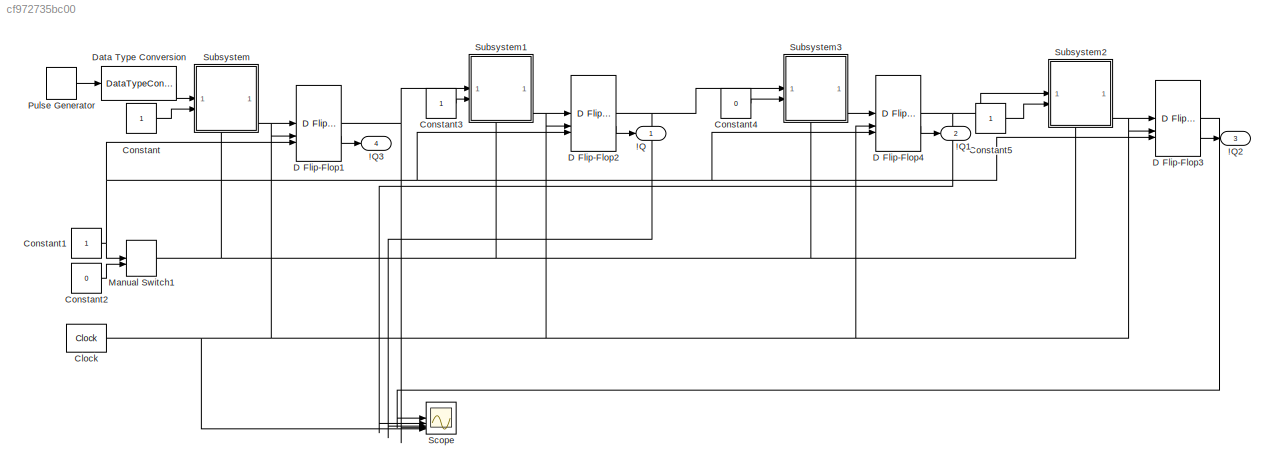
MODEL slx_cf972735bc00
KIND model
CONFIG AbsTol = auto
CONFIG EnableMultiTasking = off
CONFIG FixedStep = auto
CONFIG MaxStep = auto
CONFIG MinStep = auto
CONFIG RelTol = 1e-3
CONFIG SampleTimeConstraint = Unconstrained
CONFIG SolverName = VariableStepAuto
CONFIG StartTime = 0.0
CONFIG StopTime = 10.0
BLOCK [Outport] !Q
BLOCK [Outport] !Q1
  Port = 2
BLOCK [Outport] !Q2
  Port = 3
BLOCK [Outport] !Q3
  Port = 4
BLOCK [Reference] Clock  REF=simulink_extras/Flip Flops/Clock
  SourceBlock = simulink_extras/Flip Flops/Clock
  SourceType = Digital clock
BLOCK [Constant] Constant
BLOCK [Constant] Constant1
  OutDataTypeStr = boolean
BLOCK [Constant] Constant2
  OutDataTypeStr = boolean
  Value = 0
BLOCK [Constant] Constant3
  OutDataTypeStr = boolean
BLOCK [Constant] Constant4
  OutDataTypeStr = boolean
  Value = 0
BLOCK [Constant] Constant5
  OutDataTypeStr = boolean
BLOCK [Reference] D Flip-Flop1  REF=simulink_extras/Flip Flops/D Flip-Flop
  SourceBlock = simulink_extras/Flip Flops/D Flip-Flop
  SourceType = DFlipFlop
BLOCK [Reference] D Flip-Flop2  REF=simulink_extras/Flip Flops/D Flip-Flop
  SourceBlock = simulink_extras/Flip Flops/D Flip-Flop
  SourceType = DFlipFlop
BLOCK [Reference] D Flip-Flop3  REF=simulink_extras/Flip Flops/D Flip-Flop
  SourceBlock = simulink_extras/Flip Flops/D Flip-Flop
  SourceType = DFlipFlop
BLOCK [Reference] D Flip-Flop4  REF=simulink_extras/Flip Flops/D Flip-Flop
  SourceBlock = simulink_extras/Flip Flops/D Flip-Flop
  SourceType = DFlipFlop
BLOCK [DataTypeConversion] Data Type Conversion
  OutDataTypeStr = boolean
  RndMeth = Floor
  SaturateOnIntegerOverflow = off
BLOCK [ManualSwitch] Manual Switch1
  CurrentSetting = 0
BLOCK [DiscretePulseGenerator] Pulse Generator
  PulseType = Time based
  PulseWidth = 50
BLOCK [Scope] Scope
  Floating = off
  NumInputPorts = 5
  ScopeSpecificationString = Simulink.scopes.TimeScopeBlockCfg('CurrentConfiguration', extmgr.ConfigurationSet(extmgr.Configuration('Core','General UI',true),extmgr.Configuration('Core','Source UI',true),extmgr.Configuration('Sources','WiredSimulink',true),extmgr.Configuration('Visuals','Time Domain',true,'SerializedDisplays',{struct('MinYLimReal','-0.125','MaxYLimReal','1.125','YLabelReal','','MinYLimMag','0.00000','MaxYLimM...<+6153ch>
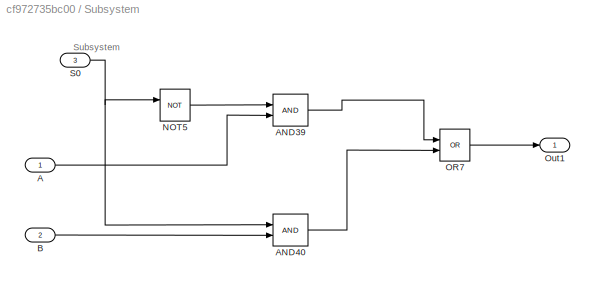
BLOCK [SubSystem] Subsystem
  PortSchema = {"entries":[{"content":{"sides":[{"content":{"connectorIds":["In1","In2"]},"type":"ConnectorPlacement.EquallySpacedRectSide","uuid":"2b5babe2-2f8b-4255-a93c-442313dac02f"},{"content":{"connectorIds":["Out1"],"side":"RIGHT"},"type":"ConnectorPlacement.EquallySpacedRectSide","uuid":"d00cf0b8-9821-435f-8e0a-21d3f86eeeec"},{"content":{"side":"TOP"},"type":"ConnectorPlacement.EquallySpacedRectSide","uu...<+377ch>  <repeated x4 — deduplicated; at blocks: Subsystem, Subsystem1, Subsystem2, Subsystem3>
BLOCK [Inport] Subsystem/A
BLOCK [Logic] Subsystem/AND39
  AllPortsSameDT = off
  IconShape = distinctive
  OutDataTypeStr = boolean
BLOCK [Logic] Subsystem/AND40
  AllPortsSameDT = off
  IconShape = distinctive
  OutDataTypeStr = boolean
BLOCK [Inport] Subsystem/B
  Port = 2
BLOCK [Logic] Subsystem/NOT5
  AllPortsSameDT = off
  IconShape = distinctive
  Operator = NOT
  OutDataTypeStr = boolean
BLOCK [Logic] Subsystem/OR7
  AllPortsSameDT = off
  IconShape = distinctive
  Operator = OR
  OutDataTypeStr = boolean
BLOCK [Outport] Subsystem/Out1
BLOCK [Inport] Subsystem/S0
  Port = 3
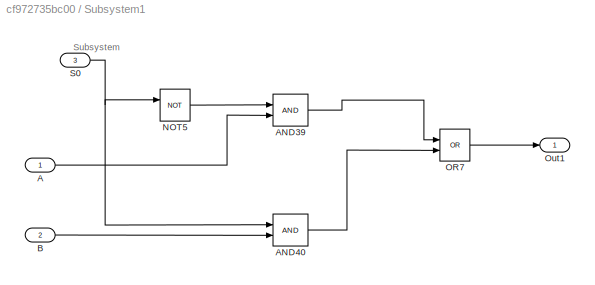
BLOCK [SubSystem] Subsystem1
BLOCK [Inport] Subsystem1/A
BLOCK [Logic] Subsystem1/AND39
  AllPortsSameDT = off
  IconShape = distinctive
  OutDataTypeStr = boolean
BLOCK [Logic] Subsystem1/AND40
  AllPortsSameDT = off
  IconShape = distinctive
  OutDataTypeStr = boolean
BLOCK [Inport] Subsystem1/B
  Port = 2
BLOCK [Logic] Subsystem1/NOT5
  AllPortsSameDT = off
  IconShape = distinctive
  Operator = NOT
  OutDataTypeStr = boolean
BLOCK [Logic] Subsystem1/OR7
  AllPortsSameDT = off
  IconShape = distinctive
  Operator = OR
  OutDataTypeStr = boolean
BLOCK [Outport] Subsystem1/Out1
BLOCK [Inport] Subsystem1/S0
  Port = 3
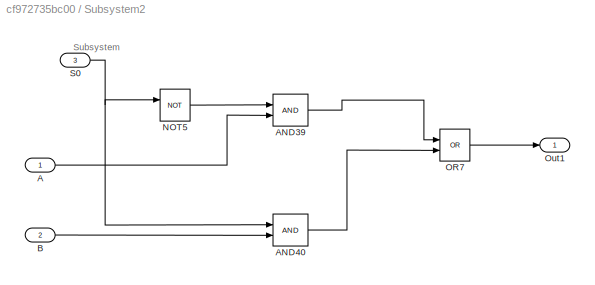
BLOCK [SubSystem] Subsystem2
BLOCK [Inport] Subsystem2/A
BLOCK [Logic] Subsystem2/AND39
  AllPortsSameDT = off
  IconShape = distinctive
  OutDataTypeStr = boolean
BLOCK [Logic] Subsystem2/AND40
  AllPortsSameDT = off
  IconShape = distinctive
  OutDataTypeStr = boolean
BLOCK [Inport] Subsystem2/B
  Port = 2
BLOCK [Logic] Subsystem2/NOT5
  AllPortsSameDT = off
  IconShape = distinctive
  Operator = NOT
  OutDataTypeStr = boolean
BLOCK [Logic] Subsystem2/OR7
  AllPortsSameDT = off
  IconShape = distinctive
  Operator = OR
  OutDataTypeStr = boolean
BLOCK [Outport] Subsystem2/Out1
BLOCK [Inport] Subsystem2/S0
  Port = 3
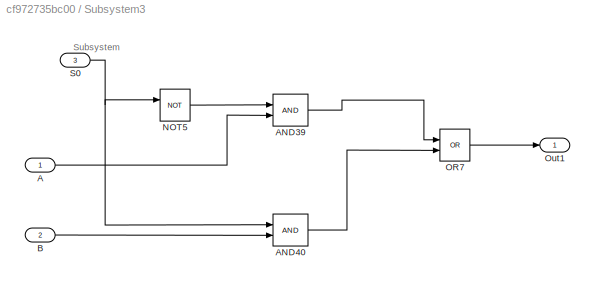
BLOCK [SubSystem] Subsystem3
BLOCK [Inport] Subsystem3/A
BLOCK [Logic] Subsystem3/AND39
  AllPortsSameDT = off
  IconShape = distinctive
  OutDataTypeStr = boolean
BLOCK [Logic] Subsystem3/AND40
  AllPortsSameDT = off
  IconShape = distinctive
  OutDataTypeStr = boolean
BLOCK [Inport] Subsystem3/B
  Port = 2
BLOCK [Logic] Subsystem3/NOT5
  AllPortsSameDT = off
  IconShape = distinctive
  Operator = NOT
  OutDataTypeStr = boolean
BLOCK [Logic] Subsystem3/OR7
  AllPortsSameDT = off
  IconShape = distinctive
  Operator = OR
  OutDataTypeStr = boolean
BLOCK [Outport] Subsystem3/Out1
BLOCK [Inport] Subsystem3/S0
  Port = 3
ANNOTATION Subsystem: Subsystem
ANNOTATION Subsystem1: Subsystem
ANNOTATION Subsystem2: Subsystem
ANNOTATION Subsystem3: Subsystem
NET Clock:1 -> D Flip-Flop1:2, D Flip-Flop2:2, D Flip-Flop3:2, D Flip-Flop4:2, Scope:5
NET Constant1:1 -> D Flip-Flop1:3, D Flip-Flop2:3, D Flip-Flop3:3, D Flip-Flop4:3, Manual Switch1:1
LINE Constant2:1 -> Manual Switch1:2
LINE Constant3:1 -> Subsystem1:2
LINE Constant4:1 -> Subsystem3:2
LINE Constant5:1 -> Subsystem2:2
LINE Constant:1 -> Subsystem:2
NET D Flip-Flop1:1 -> Scope:4, Subsystem1:1
LINE D Flip-Flop1:2 -> !Q3:1
NET D Flip-Flop2:1 -> Scope:3, Subsystem3:1
LINE D Flip-Flop2:2 -> !Q:1
LINE D Flip-Flop3:1 -> Scope:1
LINE D Flip-Flop3:2 -> !Q2:1
NET D Flip-Flop4:1 -> Scope:2, Subsystem2:1
LINE D Flip-Flop4:2 -> !Q1:1
LINE Data Type Conversion:1 -> Subsystem:1
NET Manual Switch1:1 -> Subsystem1:3, Subsystem2:3, Subsystem3:3, Subsystem:3
LINE Pulse Generator:1 -> Data Type Conversion:1
LINE Subsystem/A:1 -> Subsystem/AND39:2
LINE Subsystem/AND39:1 -> Subsystem/OR7:1
LINE Subsystem/AND40:1 -> Subsystem/OR7:2
LINE Subsystem/B:1 -> Subsystem/AND40:2
LINE Subsystem/NOT5:1 -> Subsystem/AND39:1
LINE Subsystem/OR7:1 -> Subsystem/Out1:1
NET Subsystem/S0:1 -> Subsystem/AND40:1, Subsystem/NOT5:1
LINE Subsystem1/A:1 -> Subsystem1/AND39:2
LINE Subsystem1/AND39:1 -> Subsystem1/OR7:1
LINE Subsystem1/AND40:1 -> Subsystem1/OR7:2
LINE Subsystem1/B:1 -> Subsystem1/AND40:2
LINE Subsystem1/NOT5:1 -> Subsystem1/AND39:1
LINE Subsystem1/OR7:1 -> Subsystem1/Out1:1
NET Subsystem1/S0:1 -> Subsystem1/AND40:1, Subsystem1/NOT5:1
LINE Subsystem1:1 -> D Flip-Flop2:1
LINE Subsystem2/A:1 -> Subsystem2/AND39:2
LINE Subsystem2/AND39:1 -> Subsystem2/OR7:1
LINE Subsystem2/AND40:1 -> Subsystem2/OR7:2
LINE Subsystem2/B:1 -> Subsystem2/AND40:2
LINE Subsystem2/NOT5:1 -> Subsystem2/AND39:1
LINE Subsystem2/OR7:1 -> Subsystem2/Out1:1
NET Subsystem2/S0:1 -> Subsystem2/AND40:1, Subsystem2/NOT5:1
LINE Subsystem2:1 -> D Flip-Flop3:1
LINE Subsystem3/A:1 -> Subsystem3/AND39:2
LINE Subsystem3/AND39:1 -> Subsystem3/OR7:1
LINE Subsystem3/AND40:1 -> Subsystem3/OR7:2
LINE Subsystem3/B:1 -> Subsystem3/AND40:2
LINE Subsystem3/NOT5:1 -> Subsystem3/AND39:1
LINE Subsystem3/OR7:1 -> Subsystem3/Out1:1
NET Subsystem3/S0:1 -> Subsystem3/AND40:1, Subsystem3/NOT5:1
LINE Subsystem3:1 -> D Flip-Flop4:1
LINE Subsystem:1 -> D Flip-Flop1:1
note: NET lines group one-source signal fan-out (src -> all destinations, sorted); 1:1 wires keep LINE
